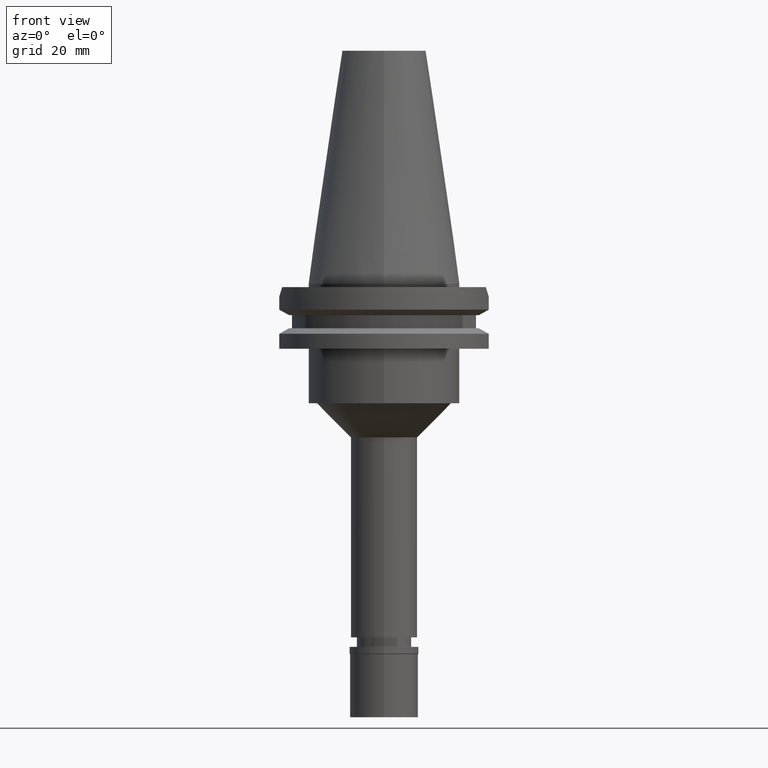
[diagram: clean part render]
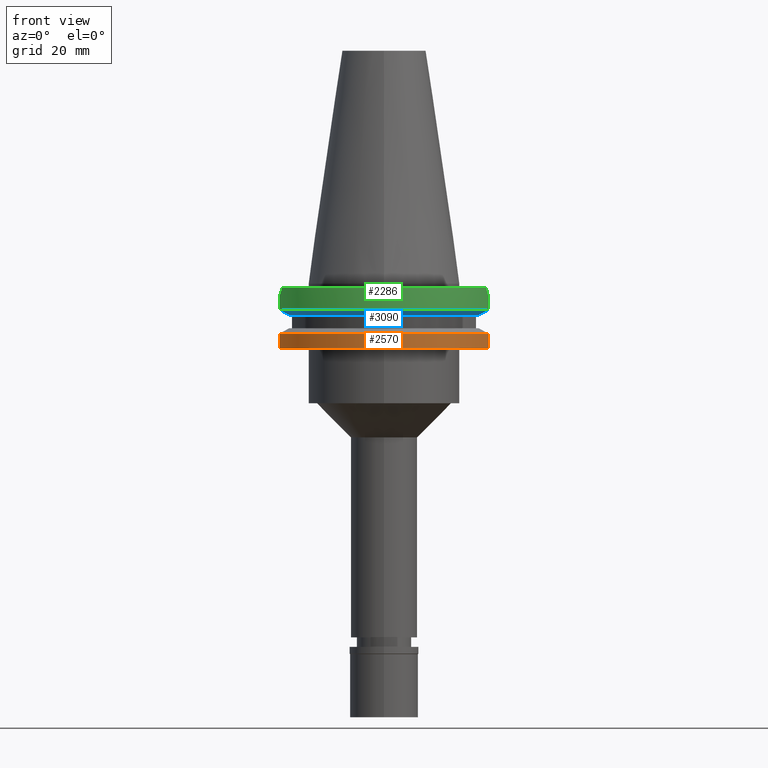
[diagram: same view with three faces highlighted in distinct colors, each labeled with its STEP entity id]
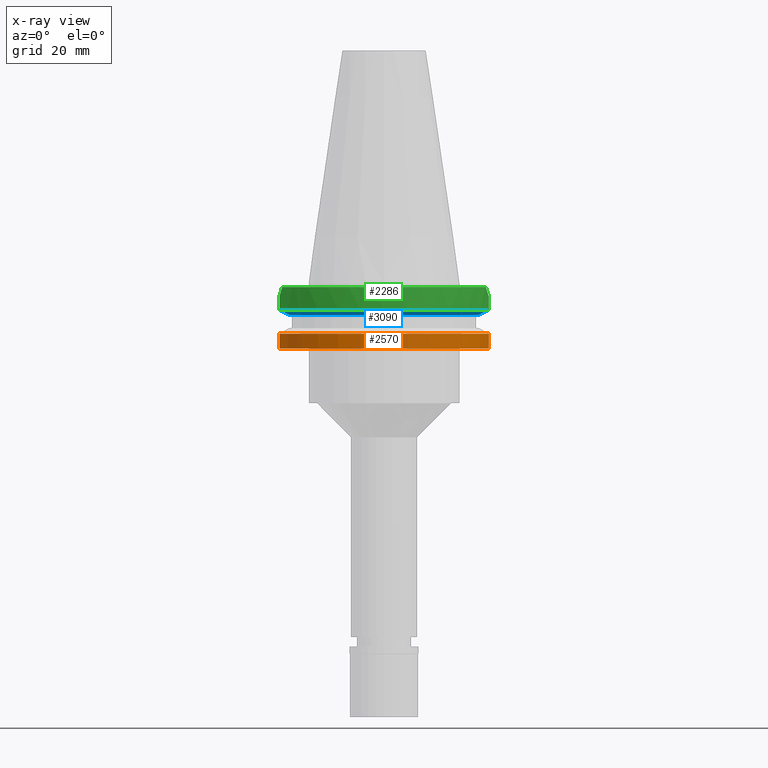
[diagram: x-ray of the same camera — body ghosted, the three highlighted faces saturated]
A machine part, front view with three faces highlighted in distinct colors.
The next image is the same camera in x-ray (body ghosted, the three faces saturated) — at least one of them is partly hidden behind the body in this view.
Their STEP definitions:

[orange] entity #2570 — the highlighted cylindrical surface (partial cylindrical patch) has radius 31.75 mm, axis along (0, 0, -1).
#41 = ORIENTED_EDGE ( 'NONE', *, *, #248, .T. ) ;
#248 = EDGE_CURVE ( 'NONE', #1966, #1730, #971, .T. ) ;
#353 = EDGE_CURVE ( 'NONE', #558, #1730, #2427, .T. ) ;
#558 = VERTEX_POINT ( 'NONE', #985 ) ;
#662 = DIRECTION ( 'NONE',  ( 0.0000000000000000000, 0.0000000000000000000, -1.000000000000000000 ) ) ;
#811 = DIRECTION ( 'NONE',  ( 0.9661575315241073270, -0.2579527559055020958, 0.0000000000000000000 ) ) ;
#971 = CIRCLE ( 'NONE', #1411, 31.74999999999998579 ) ;
#985 = CARTESIAN_POINT ( 'NONE',  ( -30.67550162588999640, -8.189999999999999503, -19.05000000000000071 ) ) ;
#1103 = VERTEX_POINT ( 'NONE', #2818 ) ;
#1177 = AXIS2_PLACEMENT_3D ( 'NONE', #1696, #662, #3052 ) ;
#1186 = FACE_OUTER_BOUND ( 'NONE', #3310, .T. ) ;
#1206 = DIRECTION ( 'NONE',  ( 0.0000000000000000000, 0.0000000000000000000, 1.000000000000000000 ) ) ;
#1411 = AXIS2_PLACEMENT_3D ( 'NONE', #3314, #2605, #811 ) ;
#1424 = DIRECTION ( 'NONE',  ( -7.635532809915995988E-09, 2.859819351723998536E-08, 0.9999999999999995559 ) ) ;
#1465 = DIRECTION ( 'NONE',  ( 3.682729900151928148E-08, 1.379365561030972276E-07, -0.9999999999999898970 ) ) ;
#1507 = CIRCLE ( 'NONE', #1876, 31.75000000000000000 ) ;
#1635 = VECTOR ( 'NONE', #1424, 1000.000000000000000 ) ;
#1648 = EDGE_CURVE ( 'NONE', #1966, #1103, #2484, .T. ) ;
#1696 = CARTESIAN_POINT ( 'NONE',  ( 0.0000000000000000000, 0.0000000000000000000, 77.61249999999999716 ) ) ;
#1730 = VERTEX_POINT ( 'NONE', #2559 ) ;
#1747 = CYLINDRICAL_SURFACE ( 'NONE', #1177, 31.75000000000000000 ) ;
#1876 = AXIS2_PLACEMENT_3D ( 'NONE', #2271, #1206, #3269 ) ;
#1945 = EDGE_CURVE ( 'NONE', #558, #1103, #1507, .T. ) ;
#1966 = VERTEX_POINT ( 'NONE', #2728 ) ;
#2024 = ORIENTED_EDGE ( 'NONE', *, *, #1648, .F. ) ;
#2271 = CARTESIAN_POINT ( 'NONE',  ( 0.0000000000000000000, 0.0000000000000000000, -19.05000000000000071 ) ) ;
#2300 = CARTESIAN_POINT ( 'NONE',  ( 30.67550146398999900, -8.190000606413999407, -14.65367218811000072 ) ) ;
#2367 = VECTOR ( 'NONE', #1465, 999.9999999999998863 ) ;
#2427 = LINE ( 'NONE', #2946, #1635 ) ;
#2484 = LINE ( 'NONE', #2300, #2367 ) ;
#2559 = CARTESIAN_POINT ( 'NONE',  ( -30.67550165945999652, -8.189999874273000913, -14.65366564556999940 ) ) ;
#2570 = ADVANCED_FACE ( 'NONE', ( #1186 ), #1747, .T. ) ;
#2605 = DIRECTION ( 'NONE',  ( 0.0000000000000000000, 0.0000000000000000000, -1.000000000000000000 ) ) ;
#2728 = CARTESIAN_POINT ( 'NONE',  ( 30.67550146398999900, -8.190000606413999407, -14.65367218811000072 ) ) ;
#2805 = ORIENTED_EDGE ( 'NONE', *, *, #353, .F. ) ;
#2818 = CARTESIAN_POINT ( 'NONE',  ( 30.67550162588999640, -8.189999999999999503, -19.05000000000000071 ) ) ;
#2946 = CARTESIAN_POINT ( 'NONE',  ( -30.67550162588999640, -8.189999999999999503, -19.05000000000000071 ) ) ;
#3052 = DIRECTION ( 'NONE',  ( 0.0000000000000000000, -1.000000000000000000, 0.0000000000000000000 ) ) ;
#3269 = DIRECTION ( 'NONE',  ( 0.0000000000000000000, -1.000000000000000000, 0.0000000000000000000 ) ) ;
#3310 = EDGE_LOOP ( 'NONE', ( #41, #2805, #3325, #2024 ) ) ;
#3314 = CARTESIAN_POINT ( 'NONE',  ( 0.0000000000000000000, 0.0000000000000000000, -14.65366676908000088 ) ) ;
#3325 = ORIENTED_EDGE ( 'NONE', *, *, #1945, .T. ) ;

[blue] entity #3090 — the highlighted conical surface has half-angle 60 deg.
#58 = VERTEX_POINT ( 'NONE', #466 ) ;
#173 = CARTESIAN_POINT ( 'NONE',  ( 0.0000000000000000000, 0.0000000000000000000, -7.601333230925999551 ) ) ;
#179 = VERTEX_POINT ( 'NONE', #2344 ) ;
#196 = AXIS2_PLACEMENT_3D ( 'NONE', #2808, #3275, #2105 ) ;
#212 = DIRECTION ( 'NONE',  ( -0.9592008904639479638, -0.2827253998726845241, 0.0000000000000000000 ) ) ;
#342 = ORIENTED_EDGE ( 'NONE', *, *, #2644, .T. ) ;
#396 = EDGE_CURVE ( 'NONE', #2767, #179, #2285, .T. ) ;
#466 = CARTESIAN_POINT ( 'NONE',  ( -27.78617704606999794, -8.189999360282000040, -9.207500000000999663 ) ) ;
#486 = EDGE_CURVE ( 'NONE', #58, #2767, #1897, .T. ) ;
#529 = CIRCLE ( 'NONE', #2735, 31.74999999999998579 ) ;
#669 = CARTESIAN_POINT ( 'NONE',  ( 29.66936146319576295, -8.190001212378922091, -8.162569410514485924 ) ) ;
#879 = CARTESIAN_POINT ( 'NONE',  ( 28.70625673615938211, -8.190000382273419532, -8.697959175385243213 ) ) ;
#972 = B_SPLINE_CURVE_WITH_KNOTS ( 'NONE', 3,
 ( #2863, #2588, #2558, #3316 ),
 .UNSPECIFIED., .F., .F.,
 ( 4, 4 ),
 ( 0.0000000000000000000, 1.000000000000000000 ),
 .UNSPECIFIED. ) ;
#1068 = CARTESIAN_POINT ( 'NONE',  ( 27.78616453849999601, -8.190000190919999312, -9.207500000000999663 ) ) ;
#1179 = ORIENTED_EDGE ( 'NONE', *, *, #486, .T. ) ;
#1437 = CARTESIAN_POINT ( 'NONE',  ( 30.67550146398999900, -8.190000606407000561, -7.601327811714999605 ) ) ;
#1474 = CARTESIAN_POINT ( 'NONE',  ( 0.0000000000000000000, 0.0000000000000000000, -9.207500000002999840 ) ) ;
#1751 = DIRECTION ( 'NONE',  ( -0.9661575315241073270, -0.2579527559055020958, 0.0000000000000000000 ) ) ;
#1883 = ORIENTED_EDGE ( 'NONE', *, *, #396, .T. ) ;
#1897 = CIRCLE ( 'NONE', #3297, 28.96803755052999918 ) ;
#1926 = EDGE_CURVE ( 'NONE', #2748, #179, #529, .T. ) ;
#2067 = EDGE_LOOP ( 'NONE', ( #1883, #2743, #342, #1179 ) ) ;
#2105 = DIRECTION ( 'NONE',  ( 0.0000000000000000000, 1.000000000000000000, 0.0000000000000000000 ) ) ;
#2174 = CARTESIAN_POINT ( 'NONE',  ( 27.78616453849999601, -8.190000190919999312, -9.207500000000999663 ) ) ;
#2256 = DIRECTION ( 'NONE',  ( 0.0000000000000000000, 0.0000000000000000000, 1.000000000000000000 ) ) ;
#2285 = B_SPLINE_CURVE_WITH_KNOTS ( 'NONE', 3,
 ( #2174, #879, #669, #1437 ),
 .UNSPECIFIED., .F., .F.,
 ( 4, 4 ),
 ( 0.0000000000000000000, 1.000000000000000000 ),
 .UNSPECIFIED. ) ;
#2309 = FACE_OUTER_BOUND ( 'NONE', #2067, .T. ) ;
#2344 = CARTESIAN_POINT ( 'NONE',  ( 30.67550146398999900, -8.190000606407000561, -7.601327811714999605 ) ) ;
#2357 = CONICAL_SURFACE ( 'NONE', #196, 30.35901877526999826, 1.047197551196400456 ) ;
#2558 = CARTESIAN_POINT ( 'NONE',  ( -28.70626004180128277, -8.189998719150324291, -8.697957593747196015 ) ) ;
#2588 = CARTESIAN_POINT ( 'NONE',  ( -29.66936067479057115, -8.189999748646160427, -8.162570071864530874 ) ) ;
#2644 = EDGE_CURVE ( 'NONE', #2748, #58, #972, .T. ) ;
#2735 = AXIS2_PLACEMENT_3D ( 'NONE', #173, #2749, #1751 ) ;
#2743 = ORIENTED_EDGE ( 'NONE', *, *, #1926, .F. ) ;
#2748 = VERTEX_POINT ( 'NONE', #3099 ) ;
#2749 = DIRECTION ( 'NONE',  ( 0.0000000000000000000, 0.0000000000000000000, 1.000000000000000000 ) ) ;
#2767 = VERTEX_POINT ( 'NONE', #1068 ) ;
#2808 = CARTESIAN_POINT ( 'NONE',  ( 0.0000000000000000000, 0.0000000000000000000, -8.404416615464000984 ) ) ;
#2863 = CARTESIAN_POINT ( 'NONE',  ( -30.67550165945999652, -8.189999874276001179, -7.601334354445000052 ) ) ;
#3090 = ADVANCED_FACE ( 'NONE', ( #2309 ), #2357, .T. ) ;
#3099 = CARTESIAN_POINT ( 'NONE',  ( -30.67550165945999652, -8.189999874276001179, -7.601334354445000052 ) ) ;
#3275 = DIRECTION ( 'NONE',  ( 0.0000000000000000000, 0.0000000000000000000, 1.000000000000000000 ) ) ;
#3297 = AXIS2_PLACEMENT_3D ( 'NONE', #1474, #2256, #212 ) ;
#3316 = CARTESIAN_POINT ( 'NONE',  ( -27.78617704606999794, -8.189999360282000040, -9.207500000000999663 ) ) ;

[green] entity #2286 — the highlighted cylindrical surface (partial cylindrical patch) has radius 31.75 mm, axis along (0, 0, -1).
#59 = DIRECTION ( 'NONE',  ( 0.0000000000000000000, -1.000000000000000000, 0.0000000000000000000 ) ) ;
#142 = AXIS2_PLACEMENT_3D ( 'NONE', #2602, #1805, #3133 ) ;
#173 = CARTESIAN_POINT ( 'NONE',  ( 0.0000000000000000000, 0.0000000000000000000, -7.601333230925999551 ) ) ;
#179 = VERTEX_POINT ( 'NONE', #2344 ) ;
#430 = CARTESIAN_POINT ( 'NONE',  ( 29.82399034335000110, -10.89000000000000057, -1.000000000001000089 ) ) ;
#433 = EDGE_CURVE ( 'NONE', #3280, #3131, #1355, .T. ) ;
#529 = CIRCLE ( 'NONE', #2735, 31.74999999999998579 ) ;
#573 = CYLINDRICAL_SURFACE ( 'NONE', #1396, 31.75000000000000000 ) ;
#626 = CARTESIAN_POINT ( 'NONE',  ( 30.43183015827552396, -9.102667216255303728, -2.787332783744696840 ) ) ;
#725 = CIRCLE ( 'NONE', #142, 31.75000000000000000 ) ;
#764 = EDGE_CURVE ( 'NONE', #3156, #1091, #1468, .T. ) ;
#858 = ORIENTED_EDGE ( 'NONE', *, *, #2924, .F. ) ;
#873 = CARTESIAN_POINT ( 'NONE',  ( -30.67550165945999652, -8.189999874276001179, -7.601334354445000052 ) ) ;
#952 = ORIENTED_EDGE ( 'NONE', *, *, #1926, .T. ) ;
#1022 = CARTESIAN_POINT ( 'NONE',  ( 29.82399034335000110, -10.89000000000000057, -1.000000000001000089 ) ) ;
#1079 = CARTESIAN_POINT ( 'NONE',  ( -29.82399034335000110, -10.89000000000000057, -1.000000000001000089 ) ) ;
#1091 = VERTEX_POINT ( 'NONE', #3026 ) ;
#1276 = ORIENTED_EDGE ( 'NONE', *, *, #764, .F. ) ;
#1355 = B_SPLINE_CURVE_WITH_KNOTS ( 'NONE', 3,
 ( #430, #1457, #626, #2236 ),
 .UNSPECIFIED., .F., .F.,
 ( 4, 4 ),
 ( 0.0000000000000000000, 1.000000000000000000 ),
 .UNSPECIFIED. ) ;
#1373 = LINE ( 'NONE', #873, #2103 ) ;
#1382 = ORIENTED_EDGE ( 'NONE', *, *, #433, .F. ) ;
#1396 = AXIS2_PLACEMENT_3D ( 'NONE', #2370, #2133, #59 ) ;
#1457 = CARTESIAN_POINT ( 'NONE',  ( 30.14799306409552671, -10.00266721625513888, -1.887332783744861908 ) ) ;
#1468 = B_SPLINE_CURVE_WITH_KNOTS ( 'NONE', 3,
 ( #1577, #2585, #3162, #1079 ),
 .UNSPECIFIED., .F., .F.,
 ( 4, 4 ),
 ( 0.0000000000000000000, 1.000000000000000000 ),
 .UNSPECIFIED. ) ;
#1477 = ORIENTED_EDGE ( 'NONE', *, *, #1494, .F. ) ;
#1494 = EDGE_CURVE ( 'NONE', #2748, #3156, #1373, .T. ) ;
#1577 = CARTESIAN_POINT ( 'NONE',  ( -30.67550162588999640, -8.189999999999999503, -3.700000000000000178 ) ) ;
#1751 = DIRECTION ( 'NONE',  ( -0.9661575315241073270, -0.2579527559055020958, 0.0000000000000000000 ) ) ;
#1805 = DIRECTION ( 'NONE',  ( 0.0000000000000000000, 0.0000000000000000000, -1.000000000000000000 ) ) ;
#1836 = FACE_OUTER_BOUND ( 'NONE', #2720, .T. ) ;
#1899 = CARTESIAN_POINT ( 'NONE',  ( 30.67550162588999640, -8.189999999999999503, -3.700000000000000178 ) ) ;
#1926 = EDGE_CURVE ( 'NONE', #2748, #179, #529, .T. ) ;
#2103 = VECTOR ( 'NONE', #2196, 1000.000000000000114 ) ;
#2133 = DIRECTION ( 'NONE',  ( 0.0000000000000000000, 0.0000000000000000000, -1.000000000000000000 ) ) ;
#2153 = ORIENTED_EDGE ( 'NONE', *, *, #3196, .T. ) ;
#2196 = DIRECTION ( 'NONE',  ( 8.604051649367997190E-09, -3.222588497053997563E-08, 0.9999999999999994449 ) ) ;
#2236 = CARTESIAN_POINT ( 'NONE',  ( 30.67550162588999640, -8.189999999999999503, -3.700000000000000178 ) ) ;
#2286 = ADVANCED_FACE ( 'NONE', ( #1836 ), #573, .T. ) ;
#2344 = CARTESIAN_POINT ( 'NONE',  ( 30.67550146398999900, -8.190000606407000561, -7.601327811714999605 ) ) ;
#2370 = CARTESIAN_POINT ( 'NONE',  ( 0.0000000000000000000, 0.0000000000000000000, 77.61249999999999716 ) ) ;
#2568 = CARTESIAN_POINT ( 'NONE',  ( 30.67550162588999640, -8.189999999999999503, -3.700000000000000178 ) ) ;
#2585 = CARTESIAN_POINT ( 'NONE',  ( -30.43183015827552040, -9.102667216255303728, -2.787332783744696840 ) ) ;
#2602 = CARTESIAN_POINT ( 'NONE',  ( 0.0000000000000000000, 0.0000000000000000000, -1.000000000000000000 ) ) ;
#2720 = EDGE_LOOP ( 'NONE', ( #1382, #2153, #1276, #1477, #952, #858 ) ) ;
#2735 = AXIS2_PLACEMENT_3D ( 'NONE', #173, #2749, #1751 ) ;
#2748 = VERTEX_POINT ( 'NONE', #3099 ) ;
#2749 = DIRECTION ( 'NONE',  ( 0.0000000000000000000, 0.0000000000000000000, 1.000000000000000000 ) ) ;
#2823 = CARTESIAN_POINT ( 'NONE',  ( -30.67550162588999640, -8.189999999999999503, -3.700000000000000178 ) ) ;
#2919 = DIRECTION ( 'NONE',  ( -4.149952334242944498E-08, -1.554361666294979818E-07, -0.9999999999999870104 ) ) ;
#2924 = EDGE_CURVE ( 'NONE', #3131, #179, #3185, .T. ) ;
#3026 = CARTESIAN_POINT ( 'NONE',  ( -29.82399034335000110, -10.89000000000000057, -1.000000000001000089 ) ) ;
#3099 = CARTESIAN_POINT ( 'NONE',  ( -30.67550165945999652, -8.189999874276001179, -7.601334354445000052 ) ) ;
#3108 = VECTOR ( 'NONE', #2919, 1000.000000000000227 ) ;
#3131 = VERTEX_POINT ( 'NONE', #2568 ) ;
#3133 = DIRECTION ( 'NONE',  ( 0.0000000000000000000, -1.000000000000000000, 0.0000000000000000000 ) ) ;
#3156 = VERTEX_POINT ( 'NONE', #2823 ) ;
#3162 = CARTESIAN_POINT ( 'NONE',  ( -30.14799306409551960, -10.00266721625513888, -1.887332783744861908 ) ) ;
#3185 = LINE ( 'NONE', #1899, #3108 ) ;
#3196 = EDGE_CURVE ( 'NONE', #3280, #1091, #725, .T. ) ;
#3280 = VERTEX_POINT ( 'NONE', #1022 ) ;